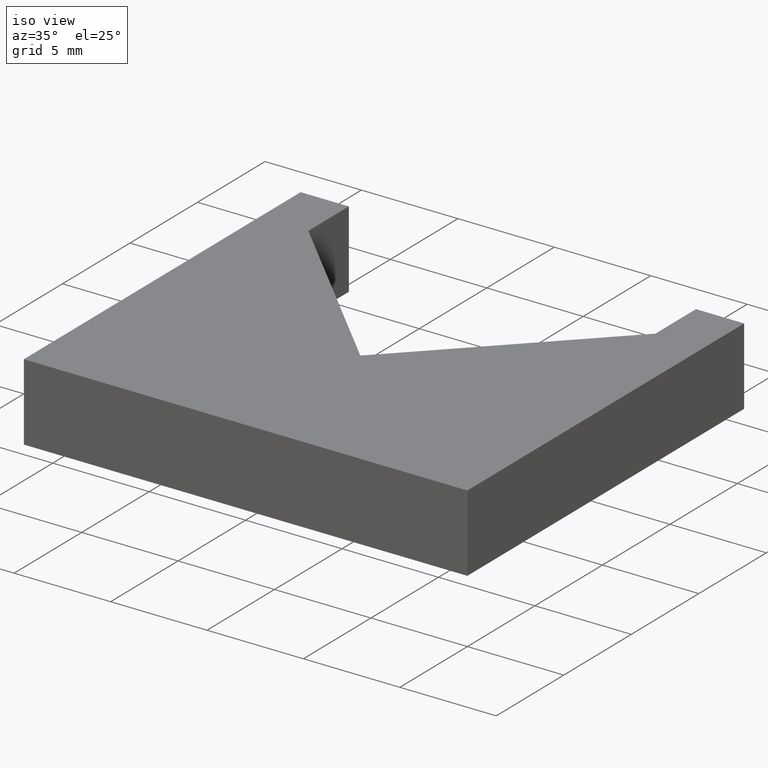
[diagram: clean part render]
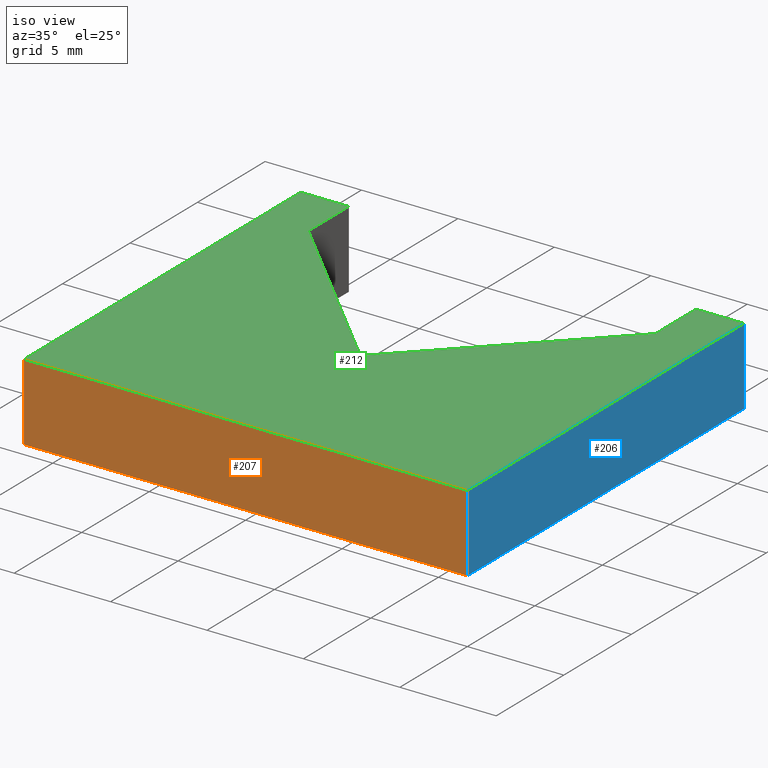
[diagram: same view with three faces highlighted in distinct colors, each labeled with its STEP entity id]
A machine part, iso view with three faces highlighted in distinct colors.
Their STEP definitions:

[orange] entity #207 — the highlighted planar face has unit normal (0, -1, 0).
#21=FACE_OUTER_BOUND('',#32,.T.);
#32=EDGE_LOOP('',(#162,#163,#164,#165));
#44=LINE('',#314,#71);
#55=LINE('',#335,#82);
#56=LINE('',#338,#83);
#57=LINE('',#339,#84);
#71=VECTOR('',#257,10.);
#82=VECTOR('',#276,10.);
#83=VECTOR('',#279,10.);
#84=VECTOR('',#280,10.);
#98=VERTEX_POINT('',#311);
#99=VERTEX_POINT('',#313);
#105=VERTEX_POINT('',#333);
#106=VERTEX_POINT('',#337);
#116=EDGE_CURVE('',#99,#98,#44,.T.);
#127=EDGE_CURVE('',#98,#105,#55,.T.);
#128=EDGE_CURVE('',#105,#106,#56,.T.);
#129=EDGE_CURVE('',#99,#106,#57,.T.);
#162=ORIENTED_EDGE('',*,*,#128,.T.);
#163=ORIENTED_EDGE('',*,*,#129,.F.);
#164=ORIENTED_EDGE('',*,*,#116,.T.);
#165=ORIENTED_EDGE('',*,*,#127,.T.);
#196=PLANE('',#241);
#207=ADVANCED_FACE('',(#21),#196,.T.);
#241=AXIS2_PLACEMENT_3D('',#336,#277,#278);
#257=DIRECTION('',(1.,0.,0.));
#276=DIRECTION('',(0.,0.,1.));
#277=DIRECTION('center_axis',(0.,-1.,0.));
#278=DIRECTION('ref_axis',(0.,0.,-1.));
#279=DIRECTION('',(-1.,0.,0.));
#280=DIRECTION('',(0.,0.,1.));
#311=CARTESIAN_POINT('',(11.5,0.,-2.));
#313=CARTESIAN_POINT('',(-11.5,0.,-2.));
#314=CARTESIAN_POINT('',(-11.5,0.,-2.));
#333=CARTESIAN_POINT('',(11.5,0.,2.));
#335=CARTESIAN_POINT('',(11.5,0.,0.));
#336=CARTESIAN_POINT('Origin',(11.5,0.,0.));
#337=CARTESIAN_POINT('',(-11.5,0.,2.));
#338=CARTESIAN_POINT('',(-11.5,0.,2.));
#339=CARTESIAN_POINT('',(-11.5,0.,0.));

[blue] entity #206 — the highlighted planar face has unit normal (1, 0, 0).
#20=FACE_OUTER_BOUND('',#31,.T.);
#31=EDGE_LOOP('',(#158,#159,#160,#161));
#43=LINE('',#312,#70);
#53=LINE('',#331,#80);
#54=LINE('',#334,#81);
#55=LINE('',#335,#82);
#70=VECTOR('',#256,10.);
#80=VECTOR('',#272,10.);
#81=VECTOR('',#275,10.);
#82=VECTOR('',#276,10.);
#97=VERTEX_POINT('',#309);
#98=VERTEX_POINT('',#311);
#104=VERTEX_POINT('',#329);
#105=VERTEX_POINT('',#333);
#115=EDGE_CURVE('',#98,#97,#43,.T.);
#125=EDGE_CURVE('',#97,#104,#53,.T.);
#126=EDGE_CURVE('',#104,#105,#54,.T.);
#127=EDGE_CURVE('',#98,#105,#55,.T.);
#158=ORIENTED_EDGE('',*,*,#126,.T.);
#159=ORIENTED_EDGE('',*,*,#127,.F.);
#160=ORIENTED_EDGE('',*,*,#115,.T.);
#161=ORIENTED_EDGE('',*,*,#125,.T.);
#195=PLANE('',#240);
#206=ADVANCED_FACE('',(#20),#195,.T.);
#240=AXIS2_PLACEMENT_3D('',#332,#273,#274);
#256=DIRECTION('',(0.,1.,0.));
#272=DIRECTION('',(0.,0.,1.));
#273=DIRECTION('center_axis',(1.,0.,0.));
#274=DIRECTION('ref_axis',(0.,0.,-1.));
#275=DIRECTION('',(0.,-1.,0.));
#276=DIRECTION('',(0.,0.,1.));
#309=CARTESIAN_POINT('',(11.5,20.5,-2.));
#311=CARTESIAN_POINT('',(11.5,0.,-2.));
#312=CARTESIAN_POINT('',(11.5,0.,-2.));
#329=CARTESIAN_POINT('',(11.5,20.5,2.));
#331=CARTESIAN_POINT('',(11.5,20.5,0.));
#332=CARTESIAN_POINT('Origin',(11.5,20.5,0.));
#333=CARTESIAN_POINT('',(11.5,0.,2.));
#334=CARTESIAN_POINT('',(11.5,0.,2.));
#335=CARTESIAN_POINT('',(11.5,0.,0.));

[green] entity #212 — the highlighted planar face has unit normal (0, 0, 1).
#26=FACE_OUTER_BOUND('',#37,.T.);
#37=EDGE_LOOP('',(#182,#183,#184,#185,#186,#187,#188,#189,#190));
#47=LINE('',#321,#74);
#50=LINE('',#326,#77);
#52=LINE('',#330,#79);
#54=LINE('',#334,#81);
#56=LINE('',#338,#83);
#58=LINE('',#342,#85);
#60=LINE('',#346,#87);
#62=LINE('',#350,#89);
#64=LINE('',#353,#91);
#74=VECTOR('',#262,10.);
#77=VECTOR('',#267,10.);
#79=VECTOR('',#271,10.);
#81=VECTOR('',#275,10.);
#83=VECTOR('',#279,10.);
#85=VECTOR('',#283,10.);
#87=VECTOR('',#287,10.);
#89=VECTOR('',#291,10.);
#91=VECTOR('',#295,10.);
#101=VERTEX_POINT('',#319);
#102=VERTEX_POINT('',#320);
#103=VERTEX_POINT('',#325);
#104=VERTEX_POINT('',#329);
#105=VERTEX_POINT('',#333);
#106=VERTEX_POINT('',#337);
#107=VERTEX_POINT('',#341);
#108=VERTEX_POINT('',#345);
#109=VERTEX_POINT('',#349);
#119=EDGE_CURVE('',#101,#102,#47,.T.);
#122=EDGE_CURVE('',#102,#103,#50,.T.);
#124=EDGE_CURVE('',#103,#104,#52,.T.);
#126=EDGE_CURVE('',#104,#105,#54,.T.);
#128=EDGE_CURVE('',#105,#106,#56,.T.);
#130=EDGE_CURVE('',#106,#107,#58,.T.);
#132=EDGE_CURVE('',#107,#108,#60,.T.);
#134=EDGE_CURVE('',#108,#109,#62,.T.);
#136=EDGE_CURVE('',#109,#101,#64,.T.);
#182=ORIENTED_EDGE('',*,*,#119,.F.);
#183=ORIENTED_EDGE('',*,*,#136,.F.);
#184=ORIENTED_EDGE('',*,*,#134,.F.);
#185=ORIENTED_EDGE('',*,*,#132,.F.);
#186=ORIENTED_EDGE('',*,*,#130,.F.);
#187=ORIENTED_EDGE('',*,*,#128,.F.);
#188=ORIENTED_EDGE('',*,*,#126,.F.);
#189=ORIENTED_EDGE('',*,*,#124,.F.);
#190=ORIENTED_EDGE('',*,*,#122,.F.);
#201=PLANE('',#246);
#212=ADVANCED_FACE('',(#26),#201,.T.);
#246=AXIS2_PLACEMENT_3D('',#354,#296,#297);
#262=DIRECTION('',(0.707106781186547,0.707106781186548,0.));
#267=DIRECTION('',(0.,1.,0.));
#271=DIRECTION('',(1.,-1.77635683940025E-15,0.));
#275=DIRECTION('',(0.,-1.,0.));
#279=DIRECTION('',(-1.,0.,0.));
#283=DIRECTION('',(0.,1.,0.));
#287=DIRECTION('',(1.,1.77635683940025E-15,0.));
#291=DIRECTION('',(0.,-1.,0.));
#295=DIRECTION('',(0.707106781186547,-0.707106781186548,0.));
#296=DIRECTION('center_axis',(0.,0.,1.));
#297=DIRECTION('ref_axis',(1.,0.,0.));
#319=CARTESIAN_POINT('',(0.,8.5,2.));
#320=CARTESIAN_POINT('',(9.,17.5,2.));
#321=CARTESIAN_POINT('',(9.,17.5,2.));
#325=CARTESIAN_POINT('',(9.,20.5,2.));
#326=CARTESIAN_POINT('',(9.,20.5,2.));
#329=CARTESIAN_POINT('',(11.5,20.5,2.));
#330=CARTESIAN_POINT('',(11.5,20.5,2.));
#333=CARTESIAN_POINT('',(11.5,0.,2.));
#334=CARTESIAN_POINT('',(11.5,0.,2.));
#337=CARTESIAN_POINT('',(-11.5,0.,2.));
#338=CARTESIAN_POINT('',(-11.5,0.,2.));
#341=CARTESIAN_POINT('',(-11.5,20.5,2.));
#342=CARTESIAN_POINT('',(-11.5,20.5,2.));
#345=CARTESIAN_POINT('',(-9.,20.5,2.));
#346=CARTESIAN_POINT('',(-9.,20.5,2.));
#349=CARTESIAN_POINT('',(-9.,17.5,2.));
#350=CARTESIAN_POINT('',(-9.,17.5,2.));
#353=CARTESIAN_POINT('',(0.,8.5,2.));
#354=CARTESIAN_POINT('Origin',(-1.38777878078145E-16,9.63284896011826,2.));